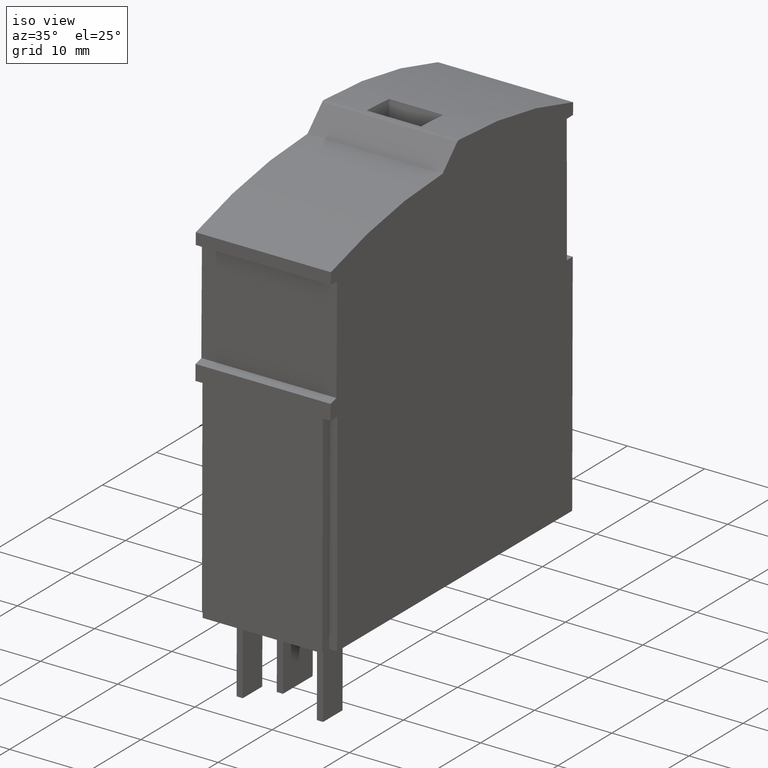
[diagram: clean part render]
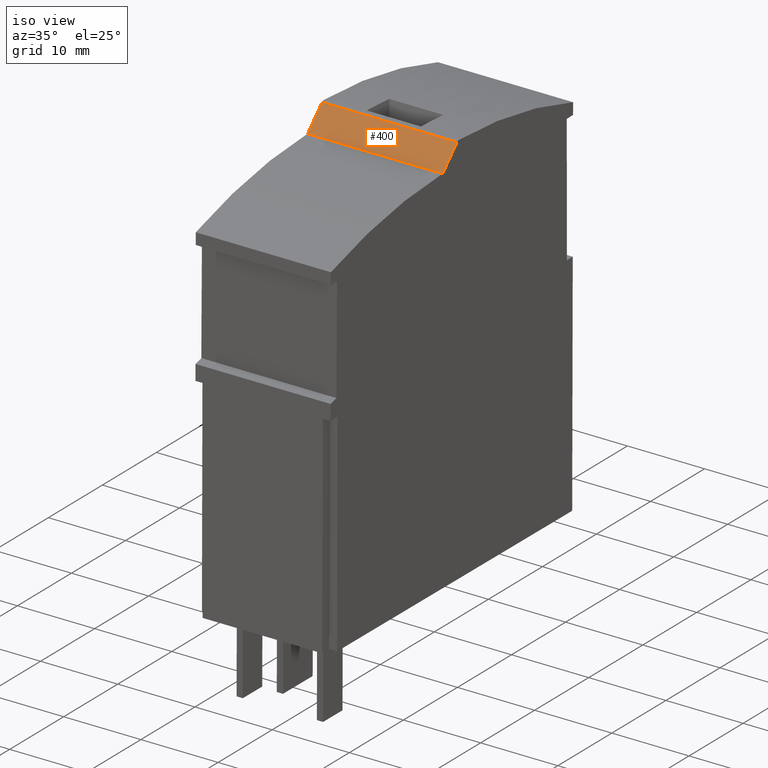
[diagram: same view with one face highlighted and labeled with its STEP entity id]
A machine part, iso view. The second image highlights one B-rep face of the part: STEP entity #400.
In plain terms, the highlighted planar face has unit normal (-0, 0.7046, -0.7096).
Its self-contained STEP definition (entity closure, byte-faithful):
#10=CARTESIAN_POINT('',(-13.5191999424533,66.4807672659834,
21.4305241959885));
#20=DIRECTION('',(0.704634209963594,-0.709570736536522,
7.27658500970573E-21));
#30=DIRECTION('',(0.709570736536522,0.704634209963594,
7.30202951804649E-21));
#40=AXIS2_PLACEMENT_3D('',#10,#20,#30);
#50=PLANE('',#40);
#60=CARTESIAN_POINT('',(55.383675636842,134.904281368354,
18.5305241959885));
#70=DIRECTION('',(-0.709570736536522,-0.704634209963594,
-7.30202951804649E-21));
#80=VECTOR('',#70,1.);
#90=LINE('',#60,#80);
#100=CARTESIAN_POINT('',(-13.6695956461832,66.3314178742696,
18.5305241959885));
#110=VERTEX_POINT('',#100);
#120=CARTESIAN_POINT('',(-16.3427578101605,63.6768530613058,
18.5305241959885));
#130=VERTEX_POINT('',#120);
#140=EDGE_CURVE('',#110,#130,#90,.T.);
#150=ORIENTED_EDGE('',*,*,#140,.T.);
#160=CARTESIAN_POINT('',(-13.6695956461832,66.3314178742697,
21.4305241959885));
#170=DIRECTION('',(-1.03086371928786E-20,1.79919842279765E-23,1.));
#180=VECTOR('',#170,1.);
#190=LINE('',#160,#180);
#200=CARTESIAN_POINT('',(-13.6695956461832,66.3314178742696,
36.0306384267959));
#210=VERTEX_POINT('',#200);
#220=EDGE_CURVE('',#110,#210,#190,.T.);
#230=ORIENTED_EDGE('',*,*,#220,.F.);
#240=CARTESIAN_POINT('',(55.383675636842,134.904281368354,
36.0306384267959));
#250=DIRECTION('',(0.709570736536522,0.704634209963594,
7.30202951804649E-21));
#260=VECTOR('',#250,1.);
#270=LINE('',#240,#260);
#280=CARTESIAN_POINT('',(-16.3427578101604,63.6768530613058,
36.0306384267959));
#290=VERTEX_POINT('',#280);
#300=EDGE_CURVE('',#290,#210,#270,.T.);
#310=ORIENTED_EDGE('',*,*,#300,.T.);
#320=CARTESIAN_POINT('',(-16.3427578101604,63.6768530613058,
21.4305241959885));
#330=DIRECTION('',(1.03086371928786E-20,-1.79919842279765E-23,-1.));
#340=VECTOR('',#330,1.);
#350=LINE('',#320,#340);
#360=EDGE_CURVE('',#290,#130,#350,.T.);
#370=ORIENTED_EDGE('',*,*,#360,.F.);
#380=EDGE_LOOP('',(#370,#310,#230,#150));
#390=FACE_OUTER_BOUND('',#380,.T.);
#400=ADVANCED_FACE('',(#390),#50,.F.);